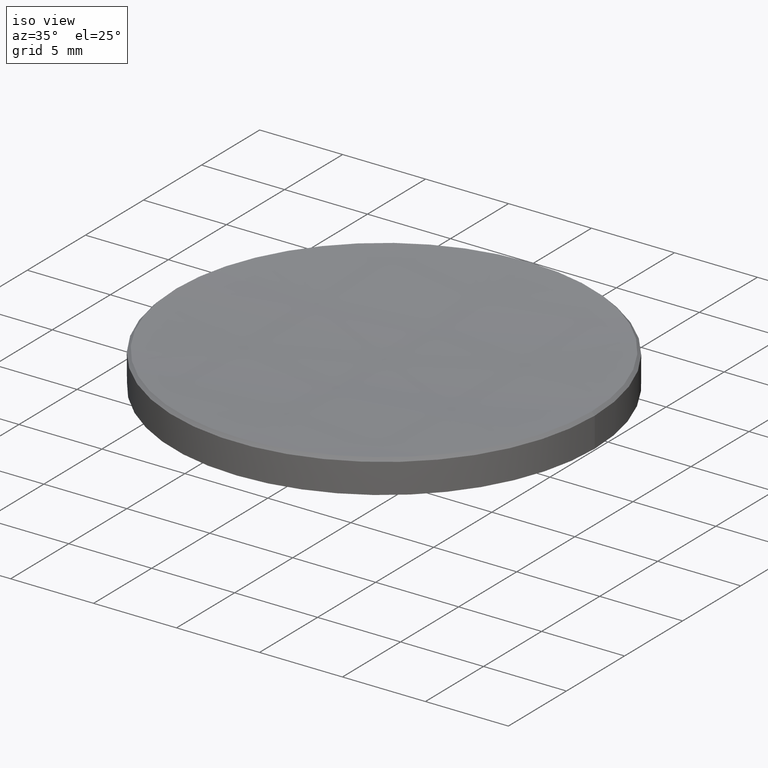
[diagram: clean part render]
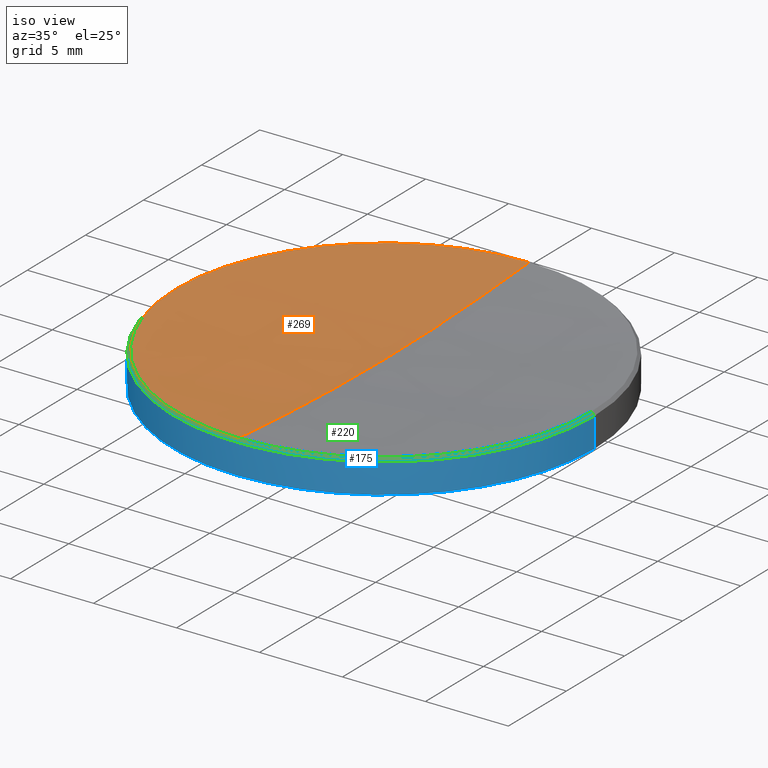
[diagram: same view with three faces highlighted in distinct colors, each labeled with its STEP entity id]
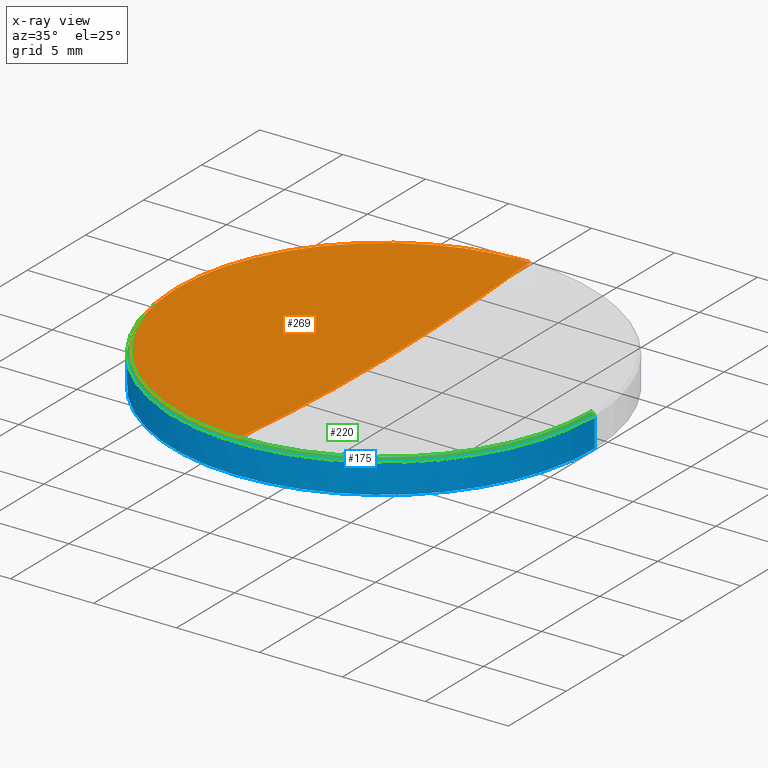
[diagram: x-ray of the same camera — body ghosted, the three highlighted faces saturated]
A machine part, iso view with three faces highlighted in distinct colors.
The next image is the same camera in x-ray (body ghosted, the three faces saturated) — at least one of them is partly hidden behind the body in this view.
Their STEP definitions:

[orange] entity #269 — the highlighted spherical surface has radius 149.76 mm.
#1 = CARTESIAN_POINT ( 'NONE',  ( 0.000000000000000000, 0.000000000000000000, 155.2205334396041110 ) ) ;
#10 = AXIS2_PLACEMENT_3D ( 'NONE', #72, #265, #160 ) ;
#16 = DIRECTION ( 'NONE',  ( 0.000000000000000000, 1.000000000000000000, 0.000000000000000000 ) ) ;
#18 = CARTESIAN_POINT ( 'NONE',  ( 0.000000000000000000, 12.51558093570944230, 5.984419064290369406 ) ) ;
#23 = EDGE_LOOP ( 'NONE', ( #77, #262, #253, #193 ) ) ;
#31 = CIRCLE ( 'NONE', #200, 12.51558093570960040 ) ;
#50 = DIRECTION ( 'NONE',  ( -0.000000000000000000, -0.000000000000000000, 1.000000000000000000 ) ) ;
#51 = AXIS2_PLACEMENT_3D ( 'NONE', #207, #171, #16 ) ;
#60 = DIRECTION ( 'NONE',  ( 0.000000000000000000, 0.000000000000000000, -1.000000000000000000 ) ) ;
#61 = VERTEX_POINT ( 'NONE', #85 ) ;
#72 = CARTESIAN_POINT ( 'NONE',  ( 0.000000000000000000, 0.000000000000000000, 5.984419064290369406 ) ) ;
#77 = ORIENTED_EDGE ( 'NONE', *, *, #234, .F. ) ;
#82 = EDGE_CURVE ( 'NONE', #214, #228, #249, .T. ) ;
#84 = FACE_OUTER_BOUND ( 'NONE', #23, .T. ) ;
#85 = CARTESIAN_POINT ( 'NONE',  ( -1.532716613238620527E-15, -12.51558093570944230, 5.984419064290369406 ) ) ;
#95 = DIRECTION ( 'NONE',  ( 1.000000000000000000, 0.000000000000000000, 0.000000000000000000 ) ) ;
#99 = AXIS2_PLACEMENT_3D ( 'NONE', #257, #236, #60 ) ;
#104 = EDGE_CURVE ( 'NONE', #228, #113, #31, .T. ) ;
#110 = DIRECTION ( 'NONE',  ( -1.224646799147353207E-16, -1.000000000000000000, 0.000000000000000000 ) ) ;
#112 = SPHERICAL_SURFACE ( 'NONE', #51, 149.7600000000000193 ) ;
#113 = VERTEX_POINT ( 'NONE', #197 ) ;
#160 = DIRECTION ( 'NONE',  ( 1.000000000000000000, 0.000000000000000000, 0.000000000000000000 ) ) ;
#171 = DIRECTION ( 'NONE',  ( -1.000000000000000000, 0.000000000000000000, 0.000000000000000000 ) ) ;
#193 = ORIENTED_EDGE ( 'NONE', *, *, #203, .T. ) ;
#197 = CARTESIAN_POINT ( 'NONE',  ( -12.51558093570960040, 0.000000000000000000, 5.984419064290369406 ) ) ;
#200 = AXIS2_PLACEMENT_3D ( 'NONE', #280, #50, #95 ) ;
#203 = EDGE_CURVE ( 'NONE', #113, #61, #252, .T. ) ;
#207 = CARTESIAN_POINT ( 'NONE',  ( 0.000000000000000000, 0.000000000000000000, 155.2205334396041110 ) ) ;
#214 = VERTEX_POINT ( 'NONE', #215 ) ;
#215 = CARTESIAN_POINT ( 'NONE',  ( 0.000000000000000000, 9.170155232015382598E-15, 5.460533439604065009 ) ) ;
#226 = CIRCLE ( 'NONE', #276, 149.7600000000000193 ) ;
#228 = VERTEX_POINT ( 'NONE', #18 ) ;
#234 = EDGE_CURVE ( 'NONE', #214, #61, #226, .T. ) ;
#236 = DIRECTION ( 'NONE',  ( 1.000000000000000000, 0.000000000000000000, 0.000000000000000000 ) ) ;
#249 = CIRCLE ( 'NONE', #99, 149.7600000000000193 ) ;
#252 = CIRCLE ( 'NONE', #10, 12.51558093570960040 ) ;
#253 = ORIENTED_EDGE ( 'NONE', *, *, #104, .T. ) ;
#257 = CARTESIAN_POINT ( 'NONE',  ( 0.000000000000000000, 0.000000000000000000, 155.2205334396041110 ) ) ;
#262 = ORIENTED_EDGE ( 'NONE', *, *, #82, .T. ) ;
#265 = DIRECTION ( 'NONE',  ( -0.000000000000000000, -0.000000000000000000, 1.000000000000000000 ) ) ;
#269 = ADVANCED_FACE ( 'NONE', ( #84 ), #112, .F. ) ;
#276 = AXIS2_PLACEMENT_3D ( 'NONE', #1, #281, #110 ) ;
#280 = CARTESIAN_POINT ( 'NONE',  ( 0.000000000000000000, 0.000000000000000000, 5.984419064290369406 ) ) ;
#281 = DIRECTION ( 'NONE',  ( -1.000000000000000000, 1.224646799147353207E-16, 0.000000000000000000 ) ) ;

[blue] entity #175 — the highlighted cylindrical surface (partial cylindrical patch) has radius 12.7 mm, axis along (-0, -0, -1).
#2 = ORIENTED_EDGE ( 'NONE', *, *, #235, .T. ) ;
#4 = DIRECTION ( 'NONE',  ( 1.000000000000000000, 0.000000000000000000, 0.000000000000000000 ) ) ;
#6 = EDGE_CURVE ( 'NONE', #274, #229, #54, .T. ) ;
#7 = DIRECTION ( 'NONE',  ( -0.000000000000000000, -0.000000000000000000, -1.000000000000000000 ) ) ;
#14 = VERTEX_POINT ( 'NONE', #148 ) ;
#21 = VERTEX_POINT ( 'NONE', #63 ) ;
#29 = DIRECTION ( 'NONE',  ( -0.000000000000000000, -0.000000000000000000, 1.000000000000000000 ) ) ;
#32 = CARTESIAN_POINT ( 'NONE',  ( 0.000000000000000000, 0.000000000000000000, 4.000000000000000000 ) ) ;
#47 = CARTESIAN_POINT ( 'NONE',  ( -12.69999999999999929, 0.000000000000000000, 10.00000000000000000 ) ) ;
#53 = DIRECTION ( 'NONE',  ( -1.000000000000000000, 0.000000000000000000, 0.000000000000000000 ) ) ;
#54 = CIRCLE ( 'NONE', #73, 12.69999999999999929 ) ;
#59 = LINE ( 'NONE', #47, #165 ) ;
#63 = CARTESIAN_POINT ( 'NONE',  ( 12.69999999999999929, 1.555301434917138433E-15, 4.000000000000000000 ) ) ;
#65 = CIRCLE ( 'NONE', #96, 12.69999999999999929 ) ;
#67 = CARTESIAN_POINT ( 'NONE',  ( -1.555301434917138827E-15, -12.70000000000000284, 4.000000000000001776 ) ) ;
#73 = AXIS2_PLACEMENT_3D ( 'NONE', #108, #195, #4 ) ;
#96 = AXIS2_PLACEMENT_3D ( 'NONE', #32, #29, #140 ) ;
#102 = ORIENTED_EDGE ( 'NONE', *, *, #169, .F. ) ;
#108 = CARTESIAN_POINT ( 'NONE',  ( 0.000000000000000000, 0.000000000000000000, 5.799999999999999822 ) ) ;
#116 = ORIENTED_EDGE ( 'NONE', *, *, #147, .T. ) ;
#117 = DIRECTION ( 'NONE',  ( -0.000000000000000000, -0.000000000000000000, -1.000000000000000000 ) ) ;
#118 = DIRECTION ( 'NONE',  ( -0.000000000000000000, -0.000000000000000000, -1.000000000000000000 ) ) ;
#134 = CIRCLE ( 'NONE', #273, 12.69999999999999929 ) ;
#139 = LINE ( 'NONE', #264, #263 ) ;
#140 = DIRECTION ( 'NONE',  ( 1.000000000000000000, 0.000000000000000000, 0.000000000000000000 ) ) ;
#147 = EDGE_CURVE ( 'NONE', #14, #204, #134, .T. ) ;
#148 = CARTESIAN_POINT ( 'NONE',  ( -12.69999999999999929, 0.000000000000000000, 4.000000000000000000 ) ) ;
#156 = CARTESIAN_POINT ( 'NONE',  ( 0.000000000000000000, 0.000000000000000000, 4.000000000000000000 ) ) ;
#165 = VECTOR ( 'NONE', #117, 1000.000000000000000 ) ;
#169 = EDGE_CURVE ( 'NONE', #274, #21, #139, .T. ) ;
#172 = ORIENTED_EDGE ( 'NONE', *, *, #6, .T. ) ;
#173 = CARTESIAN_POINT ( 'NONE',  ( -12.69999999999999929, 0.000000000000000000, 5.799999999999999822 ) ) ;
#175 = ADVANCED_FACE ( 'NONE', ( #221 ), #244, .T. ) ;
#177 = CARTESIAN_POINT ( 'NONE',  ( 0.000000000000000000, 0.000000000000000000, 10.00000000000000000 ) ) ;
#182 = DIRECTION ( 'NONE',  ( 1.000000000000000000, 0.000000000000000000, 0.000000000000000000 ) ) ;
#185 = EDGE_CURVE ( 'NONE', #204, #21, #65, .T. ) ;
#195 = DIRECTION ( 'NONE',  ( 0.000000000000000000, 0.000000000000000000, -1.000000000000000000 ) ) ;
#204 = VERTEX_POINT ( 'NONE', #67 ) ;
#213 = AXIS2_PLACEMENT_3D ( 'NONE', #177, #7, #53 ) ;
#221 = FACE_OUTER_BOUND ( 'NONE', #230, .T. ) ;
#229 = VERTEX_POINT ( 'NONE', #173 ) ;
#230 = EDGE_LOOP ( 'NONE', ( #102, #172, #2, #116, #254 ) ) ;
#235 = EDGE_CURVE ( 'NONE', #229, #14, #59, .T. ) ;
#244 = CYLINDRICAL_SURFACE ( 'NONE', #213, 12.69999999999999929 ) ;
#248 = DIRECTION ( 'NONE',  ( -0.000000000000000000, -0.000000000000000000, 1.000000000000000000 ) ) ;
#254 = ORIENTED_EDGE ( 'NONE', *, *, #185, .T. ) ;
#260 = CARTESIAN_POINT ( 'NONE',  ( 12.69999999999999929, 1.555301434917138433E-15, 5.799999999999999822 ) ) ;
#263 = VECTOR ( 'NONE', #118, 1000.000000000000000 ) ;
#264 = CARTESIAN_POINT ( 'NONE',  ( 12.69999999999999929, 1.555301434917138433E-15, 10.00000000000000000 ) ) ;
#273 = AXIS2_PLACEMENT_3D ( 'NONE', #156, #248, #182 ) ;
#274 = VERTEX_POINT ( 'NONE', #260 ) ;

[green] entity #220 — the highlighted conical surface has half-angle 45 deg.
#4 = DIRECTION ( 'NONE',  ( 1.000000000000000000, 0.000000000000000000, 0.000000000000000000 ) ) ;
#5 = DIRECTION ( 'NONE',  ( 0.7071067811865642261, 8.659560562355136236E-17, -0.7071067811865309194 ) ) ;
#6 = EDGE_CURVE ( 'NONE', #274, #229, #54, .T. ) ;
#10 = AXIS2_PLACEMENT_3D ( 'NONE', #72, #265, #160 ) ;
#11 = CIRCLE ( 'NONE', #57, 12.51558093570960040 ) ;
#12 = ORIENTED_EDGE ( 'NONE', *, *, #225, .F. ) ;
#22 = DIRECTION ( 'NONE',  ( -1.000000000000000000, 0.000000000000000000, 0.000000000000000000 ) ) ;
#36 = VERTEX_POINT ( 'NONE', #64 ) ;
#42 = EDGE_LOOP ( 'NONE', ( #212, #12, #58, #164, #48 ) ) ;
#45 = VECTOR ( 'NONE', #5, 1000.000000000000114 ) ;
#48 = ORIENTED_EDGE ( 'NONE', *, *, #6, .F. ) ;
#49 = DIRECTION ( 'NONE',  ( -0.000000000000000000, -0.000000000000000000, 1.000000000000000000 ) ) ;
#54 = CIRCLE ( 'NONE', #73, 12.69999999999999929 ) ;
#57 = AXIS2_PLACEMENT_3D ( 'NONE', #239, #49, #258 ) ;
#58 = ORIENTED_EDGE ( 'NONE', *, *, #203, .F. ) ;
#61 = VERTEX_POINT ( 'NONE', #85 ) ;
#64 = CARTESIAN_POINT ( 'NONE',  ( 12.51558093570960040, 1.544009024077889242E-15, 5.984419064290369406 ) ) ;
#72 = CARTESIAN_POINT ( 'NONE',  ( 0.000000000000000000, 0.000000000000000000, 5.984419064290369406 ) ) ;
#73 = AXIS2_PLACEMENT_3D ( 'NONE', #108, #195, #4 ) ;
#74 = VECTOR ( 'NONE', #218, 1000.000000000000114 ) ;
#85 = CARTESIAN_POINT ( 'NONE',  ( -1.532716613238620527E-15, -12.51558093570944230, 5.984419064290369406 ) ) ;
#87 = FACE_OUTER_BOUND ( 'NONE', #42, .T. ) ;
#92 = LINE ( 'NONE', #97, #45 ) ;
#97 = CARTESIAN_POINT ( 'NONE',  ( 12.51558093570959329, 1.532716613238638868E-15, 5.984419064290396939 ) ) ;
#107 = EDGE_CURVE ( 'NONE', #36, #274, #92, .T. ) ;
#108 = CARTESIAN_POINT ( 'NONE',  ( 0.000000000000000000, 0.000000000000000000, 5.799999999999999822 ) ) ;
#113 = VERTEX_POINT ( 'NONE', #197 ) ;
#131 = AXIS2_PLACEMENT_3D ( 'NONE', #132, #153, #22 ) ;
#132 = CARTESIAN_POINT ( 'NONE',  ( 0.000000000000000000, 0.000000000000000000, 5.984419064290396939 ) ) ;
#153 = DIRECTION ( 'NONE',  ( 0.000000000000000000, 0.000000000000000000, -1.000000000000000000 ) ) ;
#159 = CARTESIAN_POINT ( 'NONE',  ( -12.51558093570959329, 0.000000000000000000, 5.984419064290396939 ) ) ;
#160 = DIRECTION ( 'NONE',  ( 1.000000000000000000, 0.000000000000000000, 0.000000000000000000 ) ) ;
#164 = ORIENTED_EDGE ( 'NONE', *, *, #184, .T. ) ;
#173 = CARTESIAN_POINT ( 'NONE',  ( -12.69999999999999929, 0.000000000000000000, 5.799999999999999822 ) ) ;
#184 = EDGE_CURVE ( 'NONE', #113, #229, #247, .T. ) ;
#195 = DIRECTION ( 'NONE',  ( 0.000000000000000000, 0.000000000000000000, -1.000000000000000000 ) ) ;
#197 = CARTESIAN_POINT ( 'NONE',  ( -12.51558093570960040, 0.000000000000000000, 5.984419064290369406 ) ) ;
#203 = EDGE_CURVE ( 'NONE', #113, #61, #252, .T. ) ;
#212 = ORIENTED_EDGE ( 'NONE', *, *, #107, .F. ) ;
#218 = DIRECTION ( 'NONE',  ( -0.7071067811865642261, 0.000000000000000000, -0.7071067811865309194 ) ) ;
#220 = ADVANCED_FACE ( 'NONE', ( #87 ), #250, .T. ) ;
#225 = EDGE_CURVE ( 'NONE', #61, #36, #11, .T. ) ;
#229 = VERTEX_POINT ( 'NONE', #173 ) ;
#239 = CARTESIAN_POINT ( 'NONE',  ( 0.000000000000000000, 0.000000000000000000, 5.984419064290369406 ) ) ;
#247 = LINE ( 'NONE', #159, #74 ) ;
#250 = CONICAL_SURFACE ( 'NONE', #131, 12.51558093570959329, 0.7853981633974718157 ) ;
#252 = CIRCLE ( 'NONE', #10, 12.51558093570960040 ) ;
#258 = DIRECTION ( 'NONE',  ( 1.000000000000000000, 0.000000000000000000, 0.000000000000000000 ) ) ;
#260 = CARTESIAN_POINT ( 'NONE',  ( 12.69999999999999929, 1.555301434917138433E-15, 5.799999999999999822 ) ) ;
#265 = DIRECTION ( 'NONE',  ( -0.000000000000000000, -0.000000000000000000, 1.000000000000000000 ) ) ;
#274 = VERTEX_POINT ( 'NONE', #260 ) ;